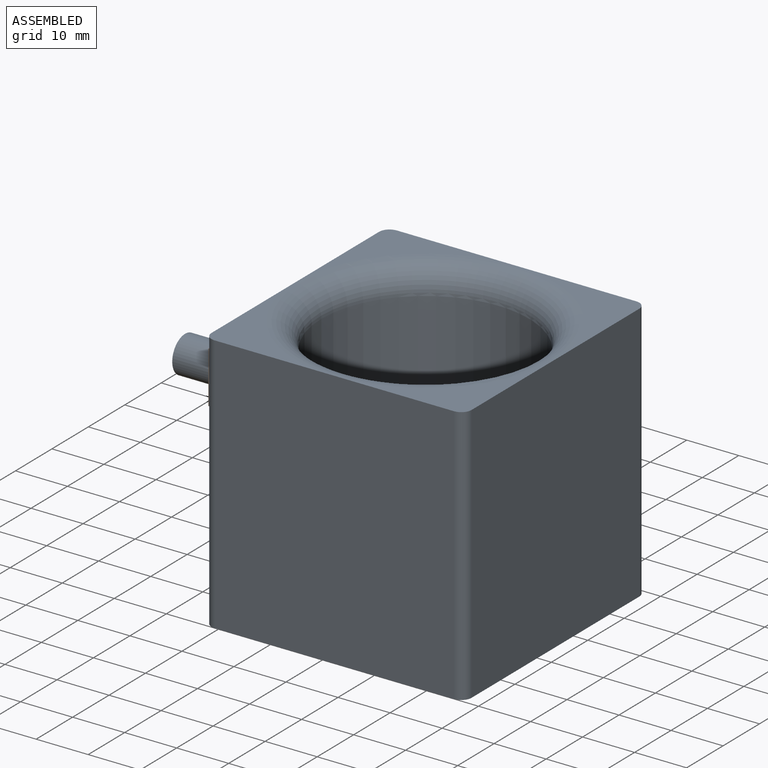
[diagram: assembled view]
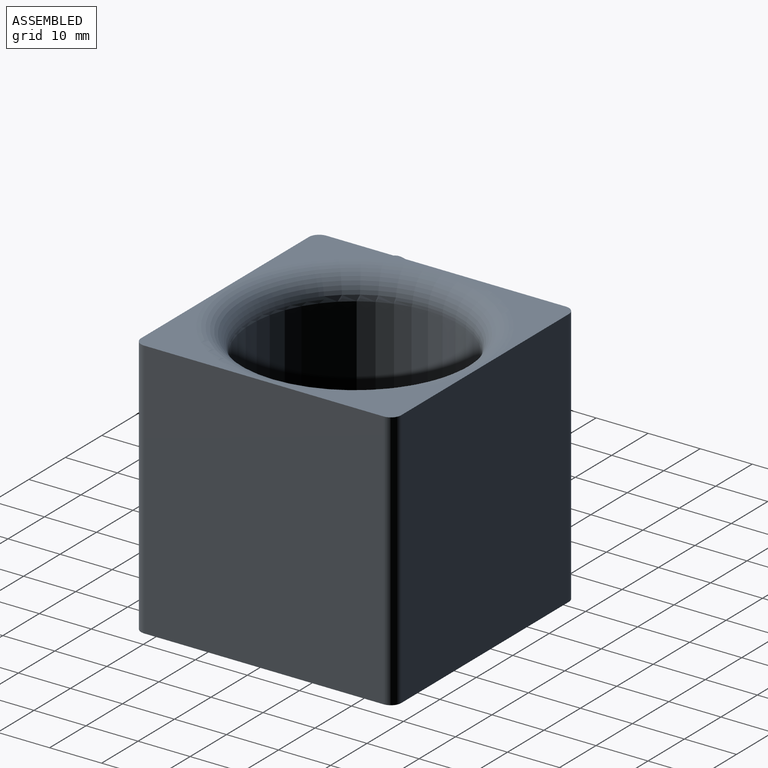
[diagram: assembled view, second angle]
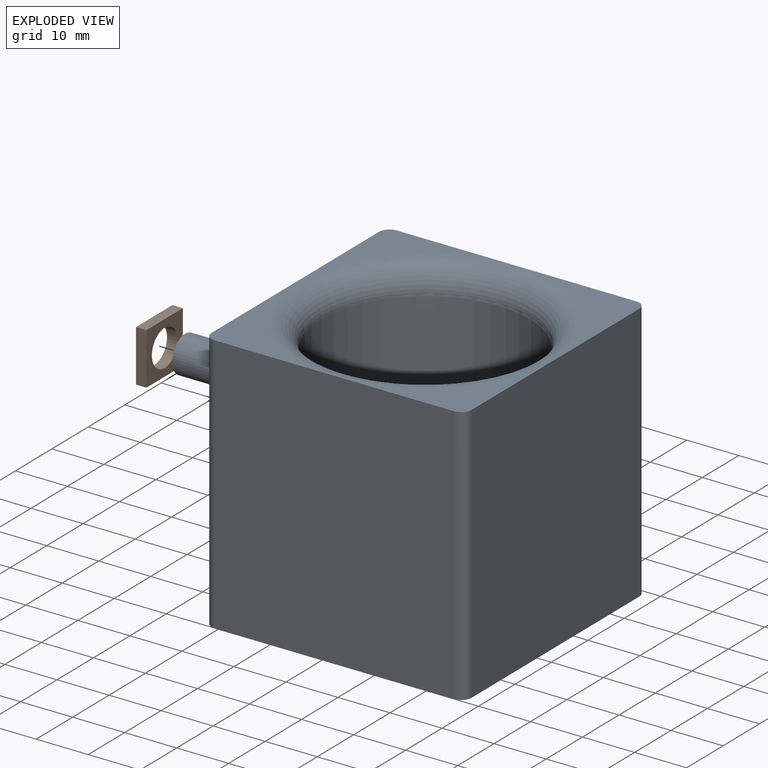
[diagram: exploded view]
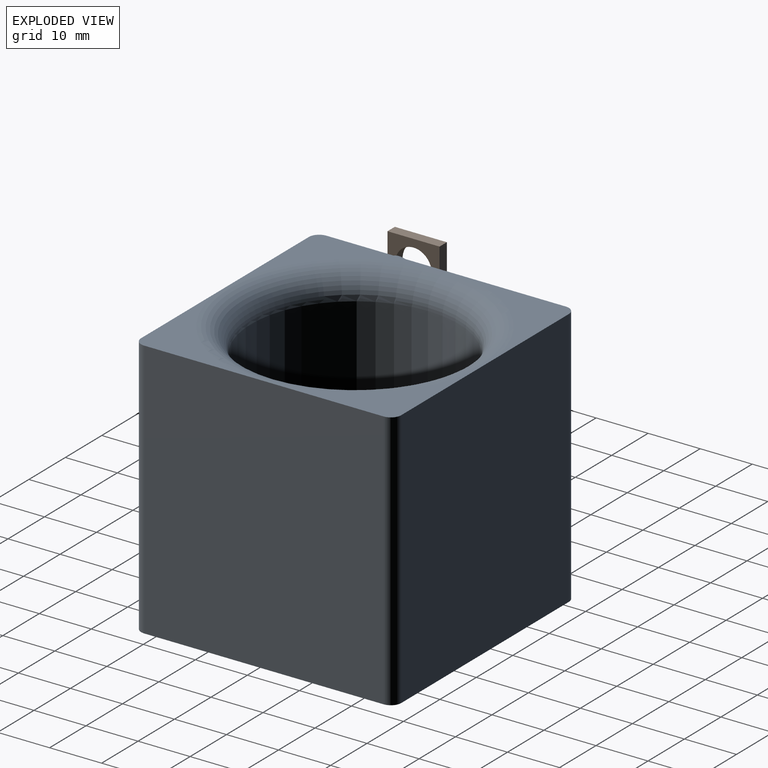
[diagram: exploded view, second angle]
ASSEMBLY  parts=2 mates=2
PART A: 17 faces, bbox 62.1x54.1x50 mm
  f0: plane 25x25mm, normal (0,0,1), area 133.3mm2, adj f4,f5,f13,f16
  f1: plane 25x25mm, normal (0,0,1), area 133.3mm2, adj f3,f4,f12,f16
  f2: plane 25x25mm, normal (0,0,1), area 133.3mm2, adj f3,f6,f15,f16
  f3: plane 50x46mm, normal (-1,0,0), area 2261.5mm2, adj f1,f2,f8,f10,f12,f15
  f4: plane 50x46mm, normal (0,-1,0), area 2300mm2, adj f0,f1,f8,f12,f13
  f5: plane 50x46mm, normal (1,0,0), area 2300mm2, adj f0,f7,f8,f13,f14
  f6: plane 50x46mm, normal (0,1,0), area 2300mm2, adj f2,f7,f8,f14,f15
  f7: plane 25x25mm, normal (0,0,1), area 133.3mm2, adj f5,f6,f14,f16
  f8: plane 50x50mm, normal (0,0,-1), area 1239.9mm2, adj f3,f4,f5,f6,f9,f12,f13,f14
  f9: cylinder r=20mm len=45mm, axis (0,0,1), area 5654.9mm2, adj f8,f16
  f10: cylinder r=3.5mm len=10mm, axis (1,0,0), area 219.9mm2, adj f3,f11
  f11: plane 7x7mm, normal (-1,0,0), area 38.5mm2, adj f10
  f12: cylinder r=2mm len=50mm, axis (0,0,1), area 157.1mm2, adj f1,f3,f4,f8
  f13: cylinder r=2mm len=50mm, axis (0,0,-1), area 157.1mm2, adj f0,f4,f5,f8
  f14: cylinder r=2mm len=50mm, axis (0,0,1), area 157.1mm2, adj f5,f6,f7,f8
  f15: cylinder r=2mm len=50mm, axis (0,0,-1), area 157.1mm2, adj f2,f3,f6,f8
  f16: torus R=25mm, axis (0,0,1), area 1076.6mm2, adj f0,f1,f2,f7,f9
PART B: 7 faces, bbox 10x10x2 mm
  f0: plane 10x2mm, normal (0,1,0), area 20mm2, adj f1,f3,f4,f5
  f1: plane 10x2mm, normal (-1,0,0), area 20mm2, adj f0,f2,f4,f5
  f2: plane 10x2mm, normal (0,-1,0), area 20mm2, adj f1,f3,f4,f5
  f3: plane 10x2mm, normal (1,0,0), area 20mm2, adj f0,f2,f4,f5
  f4: plane 10x10mm, normal (0,0,1), area 61.5mm2, adj f0,f1,f2,f3,f6
  f5: plane 10x10mm, normal (0,0,-1), area 61.5mm2, adj f0,f1,f2,f3,f6
  f6: cylinder r=3.5mm len=7mm, axis (0,0,1), area 44mm2, adj f4,f5
PLACE A t=(9.03,17.52,-15.89)mm
PLACE B rot(axis=(0,-1,0),90deg) t=(9.03,21.52,20.11)mm
MATE cylindrical B.f6 <-> A.f10  axis (-1,0,0) through (7.03,26.52,25.11)mm
MATE planar B.f5 <-> A.f3  axis (1,0,0) through (9.03,31.52,30.11)mm
